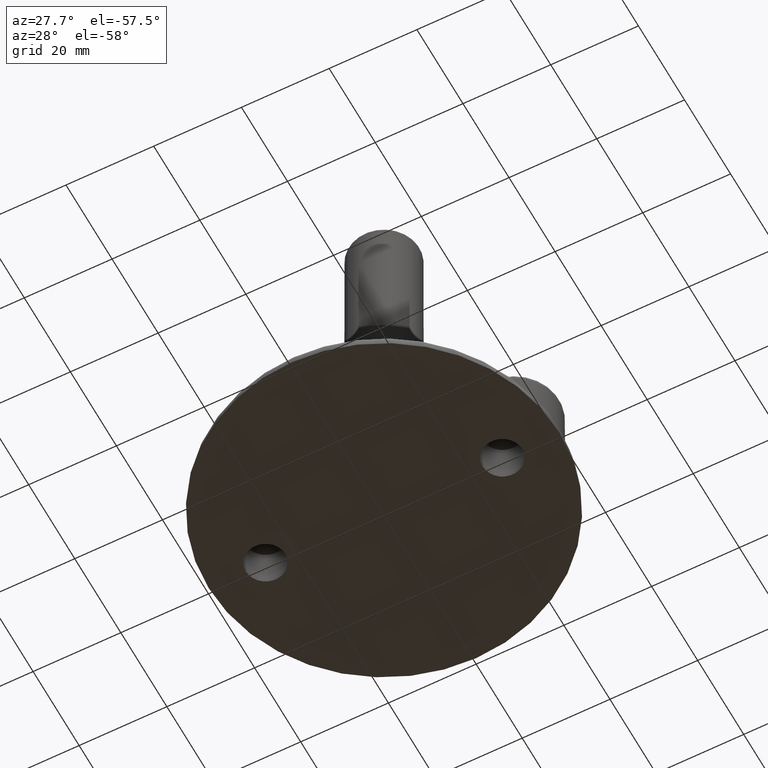
[diagram: clean part render]
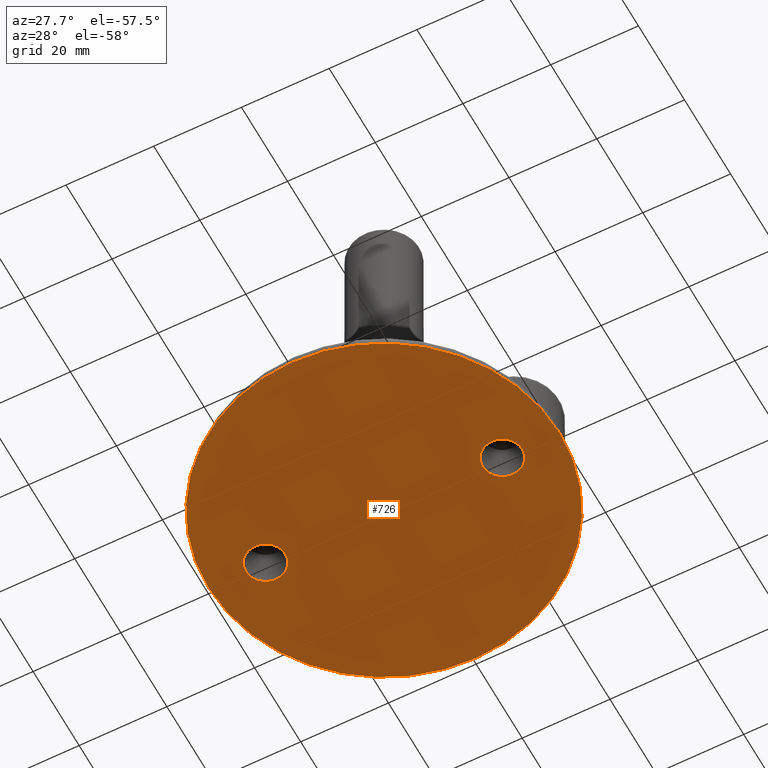
[diagram: same view with one face highlighted and labeled with its STEP entity id]
A machine part, auxiliary view. The second image highlights one B-rep face of the part: STEP entity #726.
In plain terms, the highlighted planar face has unit normal (0, 0, -1).
Its self-contained STEP definition (entity closure, byte-faithful):
#42=PLANE('',#800);
#139=FACE_BOUND('',#252,.T.);
#140=FACE_BOUND('',#253,.T.);
#195=FACE_OUTER_BOUND('',#251,.T.);
#251=EDGE_LOOP('',(#639));
#252=EDGE_LOOP('',(#640));
#253=EDGE_LOOP('',(#641));
#275=CIRCLE('',#747,4.5);
#277=CIRCLE('',#751,4.5);
#297=CIRCLE('',#782,40.);
#321=VERTEX_POINT('',#1024);
#323=VERTEX_POINT('',#1030);
#357=VERTEX_POINT('',#1511);
#387=EDGE_CURVE('',#321,#321,#275,.T.);
#389=EDGE_CURVE('',#323,#323,#277,.T.);
#441=EDGE_CURVE('',#357,#357,#297,.T.);
#639=ORIENTED_EDGE('',*,*,#441,.F.);
#640=ORIENTED_EDGE('',*,*,#387,.T.);
#641=ORIENTED_EDGE('',*,*,#389,.T.);
#726=ADVANCED_FACE('',(#195,#139,#140),#42,.T.);
#747=AXIS2_PLACEMENT_3D('',#1025,#837,#838);
#751=AXIS2_PLACEMENT_3D('',#1031,#845,#846);
#782=AXIS2_PLACEMENT_3D('',#1512,#917,#918);
#800=AXIS2_PLACEMENT_3D('',#1765,#955,#956);
#837=DIRECTION('center_axis',(0.,0.,-1.));
#838=DIRECTION('ref_axis',(1.,0.,0.));
#845=DIRECTION('center_axis',(0.,0.,-1.));
#846=DIRECTION('ref_axis',(1.,0.,0.));
#917=DIRECTION('center_axis',(0.,0.,-1.));
#918=DIRECTION('ref_axis',(1.,0.,0.));
#955=DIRECTION('center_axis',(0.,0.,1.));
#956=DIRECTION('ref_axis',(1.,0.,0.));
#1024=CARTESIAN_POINT('',(31.5,0.,0.));
#1025=CARTESIAN_POINT('Origin',(27.,0.,0.));
#1030=CARTESIAN_POINT('',(-22.5,0.,0.));
#1031=CARTESIAN_POINT('Origin',(-27.,0.,0.));
#1511=CARTESIAN_POINT('',(-40.,0.,0.));
#1512=CARTESIAN_POINT('Origin',(0.,0.,0.));
#1765=CARTESIAN_POINT('Origin',(-40.,0.,0.));